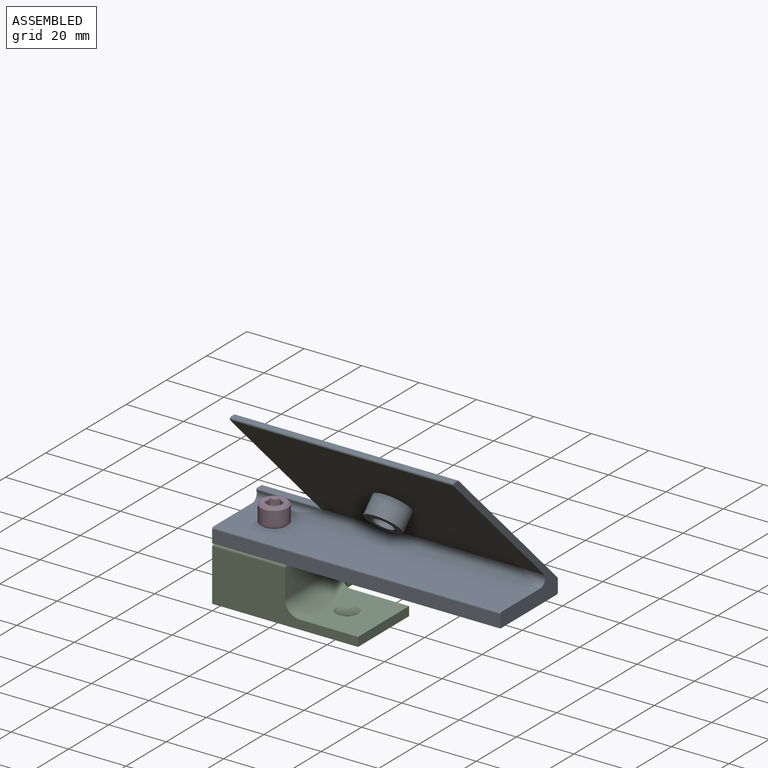
[diagram: assembled view]
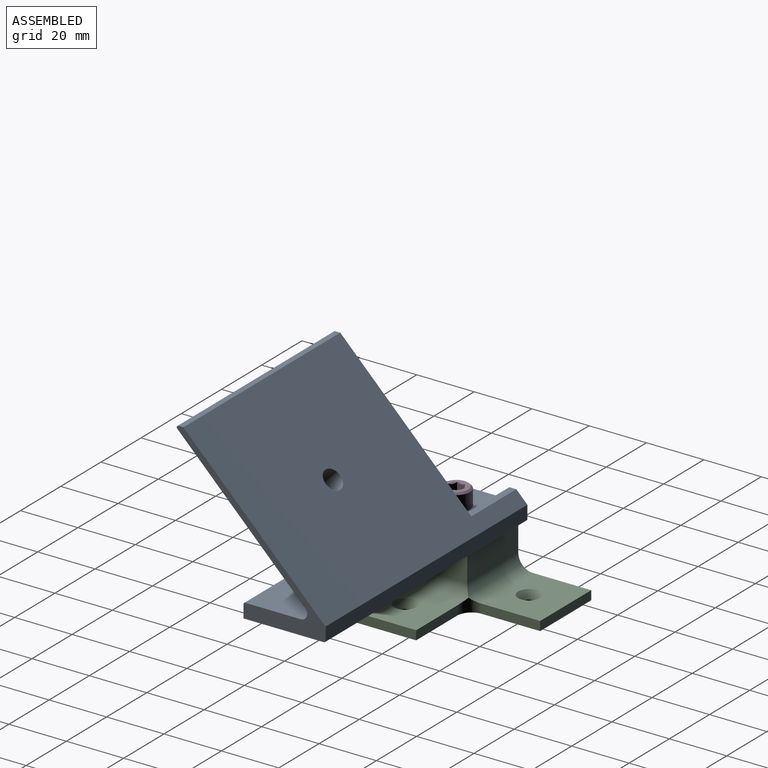
[diagram: assembled view, second angle]
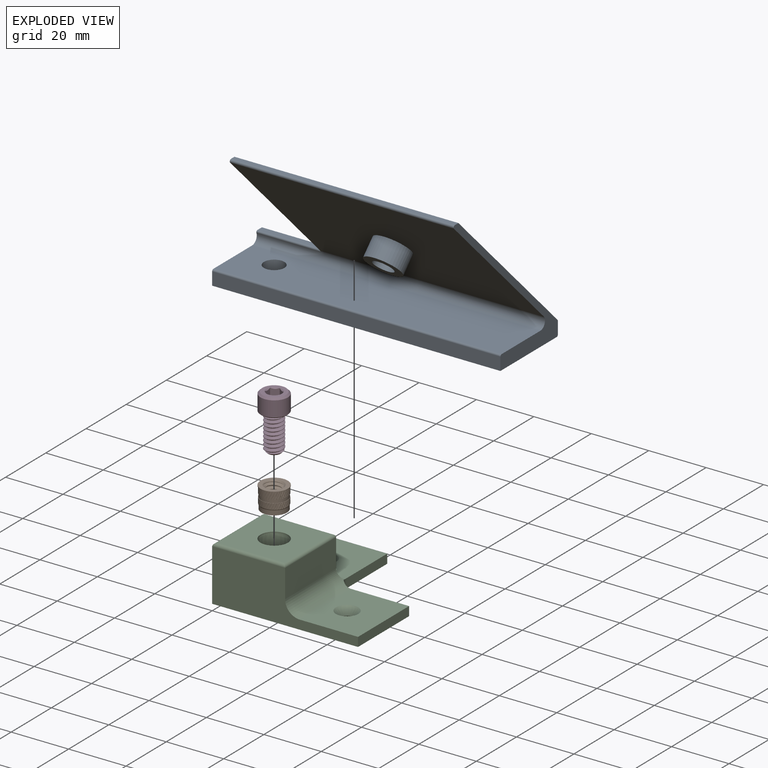
[diagram: exploded view]
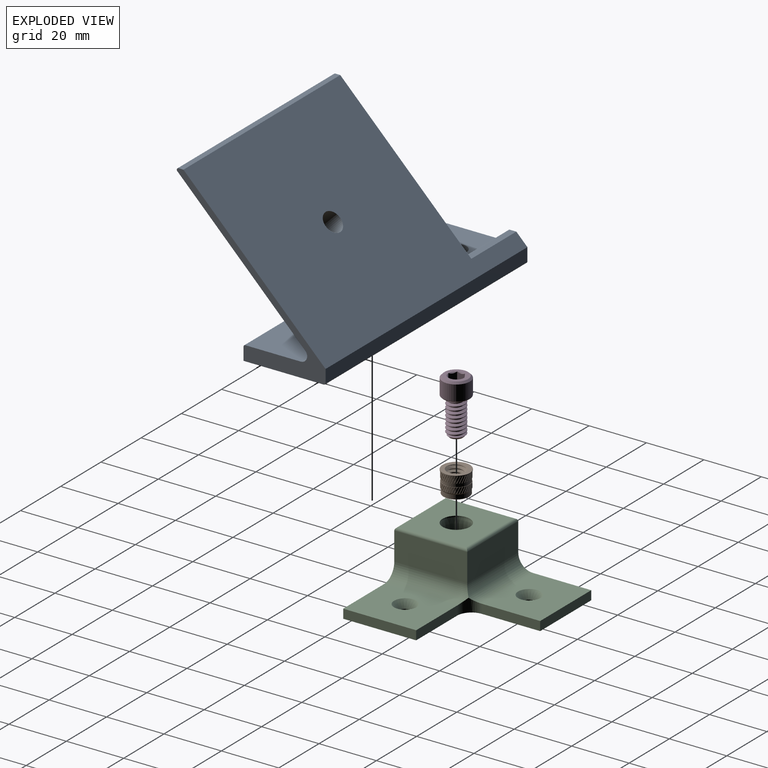
[diagram: exploded view, second angle]
ASSEMBLY  parts=4 mates=5
PART A: 20 faces, bbox 100.4x51.8x54.6 mm
  f0: plane 100.4x19.28mm, normal (0,0,1), area 1895.8mm2, adj f3,f5,f11,f15,f19
  f1: plane 47.97x46.33mm, normal (-1,0,0), area 144.6mm2, adj f7,f8,f9,f10,f11,f12,f13
  f2: plane 100.4x4.48mm, normal (0,1,0), area 449.8mm2, adj f3,f5,f7,f14
  f3: plane 28.58x8.94mm, normal (-1,0,0), area 163.5mm2, adj f0,f2,f4,f6,f7,f10,f11,f12
  f4: plane 100.4x4.48mm, normal (0,-1,0), area 449.8mm2, adj f3,f5,f6,f15
  f5: plane 54.58x51.82mm, normal (1,0,0), area 308.2mm2, adj f0,f2,f4,f6,f7,f8,f9,f11
  f6: plane 100.4x27.98mm, normal (0,0,-1), area 2768.7mm2, adj f3,f4,f5,f14,f19
  f7: plane 100.4x49.5mm, normal (0,0.71,0.71), area 5542.2mm2, adj f1,f2,f3,f5,f8,f10,f18
  f8: plane 78x1.73mm, normal (0,0,1), area 134.7mm2, adj f1,f5,f7,f13
  f9: plane 78x44.57mm, normal (0,-0.71,-0.71), area 4789.9mm2, adj f1,f5,f11,f13,f16
  f10: plane 22.4x2.26mm, normal (0,0,1), area 50.7mm2, adj f1,f3,f7,f12
  f11: cylinder r=2.29mm len=100.4mm, axis (1,0,0), area 520.8mm2, adj f0,f1,f3,f5,f9,f12
  f12: cylinder r=0.5mm len=22.4mm, axis (1,0,0), area 22mm2, adj f1,f3,f10,f11
  f13: cylinder r=0.6mm len=78mm, axis (1,0,0), area 110.3mm2, adj f1,f5,f8,f9
  f14: cylinder r=0.6mm len=100.4mm, axis (-1,0,0), area 94.6mm2, adj f2,f3,f5,f6
  f15: cylinder r=0.6mm len=100.4mm, axis (-1,0,0), area 94.6mm2, adj f0,f3,f4,f5
  f16: cylinder r=6.35mm len=13.83mm, axis (0,0.71,0.71), area 273.6mm2, adj f9,f17
  f17: plane 12.7x8.98mm, normal (0,-0.71,-0.71), area 86.7mm2, adj f16,f18
  f18: cylinder r=3.57mm len=11.48mm, axis (0,0.71,0.71), area 204.1mm2, adj f7,f17
  f19: cylinder r=3.57mm len=7.14mm, axis (0,0,1), area 113.9mm2, adj f0,f6
PART B: 233 faces, bbox 9.5x8.7x9.5 mm
  f0: cylinder r=4.61mm len=2.03mm, axis (0,1,0), area 1.3mm2, adj f37,f106,f151,f230
  f1: cylinder r=4.61mm len=2.03mm, axis (0,1,0), area 1.3mm2, adj f104,f107,f151,f230
  f2: cylinder r=4.61mm len=2.03mm, axis (0,1,0), area 1.3mm2, adj f102,f105,f151,f230
  f3: cylinder r=4.61mm len=2.03mm, axis (0,1,0), area 1.3mm2, adj f100,f103,f151,f230
  f4: cylinder r=4.61mm len=2.03mm, axis (0,1,0), area 1.3mm2, adj f98,f101,f151,f230
  f5: cylinder r=4.61mm len=2.03mm, axis (0,1,0), area 1.3mm2, adj f96,f99,f151,f230
  f6: cylinder r=4.61mm len=2.03mm, axis (0,1,0), area 1.3mm2, adj f94,f97,f151,f230
  f7: cylinder r=4.61mm len=2.03mm, axis (0,1,0), area 1.3mm2, adj f92,f95,f151,f230
  f8: cylinder r=4.61mm len=2.03mm, axis (0,1,0), area 1.3mm2, adj f90,f93,f151,f230
  f9: cylinder r=4.61mm len=2.03mm, axis (0,1,0), area 1.3mm2, adj f88,f91,f151,f230
  f10: cylinder r=4.61mm len=2.03mm, axis (0,1,0), area 1.3mm2, adj f86,f89,f151,f230
  f11: cylinder r=4.61mm len=2.03mm, axis (0,1,0), area 1.3mm2, adj f84,f87,f151,f230
  f12: cylinder r=4.61mm len=2.03mm, axis (0,1,0), area 1.3mm2, adj f82,f85,f151,f230
  f13: cylinder r=4.61mm len=2.03mm, axis (0,1,0), area 1.3mm2, adj f80,f83,f151,f230
  f14: cylinder r=4.61mm len=2.03mm, axis (0,1,0), area 1.3mm2, adj f78,f81,f151,f230
  f15: cylinder r=4.61mm len=2.03mm, axis (0,1,0), area 1.3mm2, adj f76,f79,f151,f230
  f16: cylinder r=4.61mm len=2.03mm, axis (0,1,0), area 1.3mm2, adj f74,f77,f151,f230
  f17: cylinder r=4.61mm len=2.03mm, axis (0,1,0), area 1.3mm2, adj f72,f75,f151,f230
  f18: cylinder r=4.61mm len=2.03mm, axis (0,1,0), area 1.3mm2, adj f70,f73,f151,f230
  f19: cylinder r=4.61mm len=2.03mm, axis (0,1,0), area 1.3mm2, adj f68,f71,f151,f230
  f20: cylinder r=4.61mm len=2.03mm, axis (0,1,0), area 1.3mm2, adj f66,f69,f151,f230
  f21: cylinder r=4.61mm len=2.03mm, axis (0,1,0), area 1.3mm2, adj f64,f67,f151,f230
  f22: cylinder r=4.61mm len=2.03mm, axis (0,1,0), area 1.3mm2, adj f62,f65,f151,f230
  f23: cylinder r=4.61mm len=2.03mm, axis (0,1,0), area 1.3mm2, adj f60,f63,f151,f230
  f24: cylinder r=4.61mm len=2.03mm, axis (0,1,0), area 1.3mm2, adj f58,f61,f151,f230
  f25: cylinder r=4.61mm len=2.03mm, axis (0,1,0), area 1.3mm2, adj f56,f59,f151,f230
  f26: cylinder r=4.61mm len=2.03mm, axis (0,1,0), area 1.3mm2, adj f54,f57,f151,f230
  f27: cylinder r=4.61mm len=2.03mm, axis (0,1,0), area 1.3mm2, adj f52,f55,f151,f230
  f28: cylinder r=4.61mm len=2.03mm, axis (0,1,0), area 1.3mm2, adj f50,f53,f151,f230
  f29: cylinder r=4.61mm len=2.03mm, axis (0,1,0), area 1.3mm2, adj f48,f51,f151,f230
  f30: cylinder r=4.61mm len=2.03mm, axis (0,1,0), area 1.3mm2, adj f46,f49,f151,f230
  f31: cylinder r=4.61mm len=2.03mm, axis (0,1,0), area 1.3mm2, adj f44,f47,f151,f230
  f32: cylinder r=4.61mm len=2.03mm, axis (0,1,0), area 1.3mm2, adj f42,f45,f151,f230
  f33: cylinder r=4.61mm len=2.03mm, axis (0,1,0), area 1.3mm2, adj f40,f43,f151,f230
  f34: cylinder r=4.61mm len=2.03mm, axis (0,1,0), area 1.3mm2, adj f38,f41,f151,f230
  f35: cylinder r=4.61mm len=2.03mm, axis (0,1,0), area 1.3mm2, adj f36,f39,f151,f230
  f36: bspline ~2.44x1.12mm, area 0.3mm2, adj f35,f37,f151,f230
  f37: bspline ~2.44x1.19mm, area 0.3mm2, adj f0,f36,f151,f230
  f38: bspline ~2.44x1.22mm, area 0.3mm2, adj f34,f39,f151,f230
  f39: bspline ~2.44x1.27mm, area 0.3mm2, adj f35,f38,f151,f230
  f40: bspline ~2.44x1.29mm, area 0.3mm2, adj f33,f41,f151,f230
  f41: bspline ~2.18x1.18mm, area 0.3mm2, adj f34,f40,f151,f230
  f42: bspline ~2.44x1.32mm, area 0.3mm2, adj f32,f43,f151,f230
  f43: bspline ~2.18x1.18mm, area 0.3mm2, adj f33,f42,f151,f230
  f44: bspline ~2.44x1.3mm, area 0.3mm2, adj f31,f45,f151,f230
  f45: bspline ~2.18x1.15mm, area 0.3mm2, adj f32,f44,f151,f230
  f46: bspline ~2.44x1.25mm, area 0.3mm2, adj f30,f47,f151,f230
  f47: bspline ~2.18x1.07mm, area 0.3mm2, adj f31,f46,f151,f230
  f48: bspline ~2.44x1.16mm, area 0.3mm2, adj f29,f49,f151,f230
  f49: bspline ~2.44x1.08mm, area 0.3mm2, adj f30,f48,f151,f230
  f50: bspline ~2.44x1.03mm, area 0.3mm2, adj f28,f51,f151,f230
  f51: bspline ~2.44x0.94mm, area 0.3mm2, adj f29,f50,f151,f230
  f52: bspline ~2.44x0.99mm, area 0.3mm2, adj f27,f53,f151,f230
  f53: bspline ~2.44x1.08mm, area 0.3mm2, adj f28,f52,f151,f230
  f54: bspline ~2.44x1.12mm, area 0.3mm2, adj f26,f55,f151,f230
  f55: bspline ~2.44x1.19mm, area 0.3mm2, adj f27,f54,f151,f230
  f56: bspline ~2.44x1.22mm, area 0.3mm2, adj f25,f57,f151,f230
  f57: bspline ~2.44x1.27mm, area 0.3mm2, adj f26,f56,f151,f230
  f58: bspline ~2.44x1.29mm, area 0.3mm2, adj f24,f59,f151,f230
  f59: bspline ~2.18x1.18mm, area 0.3mm2, adj f25,f58,f151,f230
  f60: bspline ~2.44x1.32mm, area 0.3mm2, adj f23,f61,f151,f230
  f61: bspline ~2.18x1.18mm, area 0.3mm2, adj f24,f60,f151,f230
  f62: bspline ~2.44x1.3mm, area 0.3mm2, adj f22,f63,f151,f230
  f63: bspline ~2.18x1.15mm, area 0.3mm2, adj f23,f62,f151,f230
  f64: bspline ~2.44x1.25mm, area 0.3mm2, adj f21,f65,f151,f230
  f65: bspline ~2.18x1.07mm, area 0.3mm2, adj f22,f64,f151,f230
  f66: bspline ~2.44x1.16mm, area 0.3mm2, adj f20,f67,f151,f230
  f67: bspline ~2.44x1.08mm, area 0.3mm2, adj f21,f66,f151,f230
  f68: bspline ~2.44x1.03mm, area 0.3mm2, adj f19,f69,f151,f230
  f69: bspline ~2.44x0.94mm, area 0.3mm2, adj f20,f68,f151,f230
  f70: bspline ~2.44x0.99mm, area 0.3mm2, adj f18,f71,f151,f230
  f71: bspline ~2.44x1.08mm, area 0.3mm2, adj f19,f70,f151,f230
  f72: bspline ~2.44x1.12mm, area 0.3mm2, adj f17,f73,f151,f230
  f73: bspline ~2.44x1.19mm, area 0.3mm2, adj f18,f72,f151,f230
  f74: bspline ~2.44x1.22mm, area 0.3mm2, adj f16,f75,f151,f230
  f75: bspline ~2.44x1.27mm, area 0.3mm2, adj f17,f74,f151,f230
  f76: bspline ~2.44x1.29mm, area 0.3mm2, adj f15,f77,f151,f230
  f77: bspline ~2.18x1.18mm, area 0.3mm2, adj f16,f76,f151,f230
  f78: bspline ~2.44x1.32mm, area 0.3mm2, adj f14,f79,f151,f230
  f79: bspline ~2.18x1.18mm, area 0.3mm2, adj f15,f78,f151,f230
  f80: bspline ~2.44x1.3mm, area 0.3mm2, adj f13,f81,f151,f230
  f81: bspline ~2.18x1.15mm, area 0.3mm2, adj f14,f80,f151,f230
  f82: bspline ~2.44x1.25mm, area 0.3mm2, adj f12,f83,f151,f230
  f83: bspline ~2.18x1.07mm, area 0.3mm2, adj f13,f82,f151,f230
  f84: bspline ~2.44x1.16mm, area 0.3mm2, adj f11,f85,f151,f230
  f85: bspline ~2.44x1.08mm, area 0.3mm2, adj f12,f84,f151,f230
  f86: bspline ~2.44x1.03mm, area 0.3mm2, adj f10,f87,f151,f230
  f87: bspline ~2.44x0.94mm, area 0.3mm2, adj f11,f86,f151,f230
  f88: bspline ~2.44x0.99mm, area 0.3mm2, adj f9,f89,f151,f230
  f89: bspline ~2.44x1.08mm, area 0.3mm2, adj f10,f88,f151,f230
  f90: bspline ~2.44x1.12mm, area 0.3mm2, adj f8,f91,f151,f230
  f91: bspline ~2.44x1.19mm, area 0.3mm2, adj f9,f90,f151,f230
  f92: bspline ~2.44x1.22mm, area 0.3mm2, adj f7,f93,f151,f230
  f93: bspline ~2.44x1.27mm, area 0.3mm2, adj f8,f92,f151,f230
  f94: bspline ~2.44x1.29mm, area 0.3mm2, adj f6,f95,f151,f230
  f95: bspline ~2.18x1.18mm, area 0.3mm2, adj f7,f94,f151,f230
  f96: bspline ~2.44x1.32mm, area 0.3mm2, adj f5,f97,f151,f230
  f97: bspline ~2.18x1.18mm, area 0.3mm2, adj f6,f96,f151,f230
  f98: bspline ~2.44x1.3mm, area 0.3mm2, adj f4,f99,f151,f230
  f99: bspline ~2.18x1.15mm, area 0.3mm2, adj f5,f98,f151,f230
  f100: bspline ~2.44x1.25mm, area 0.3mm2, adj f3,f101,f151,f230
  f101: bspline ~2.18x1.07mm, area 0.3mm2, adj f4,f100,f151,f230
  f102: bspline ~2.44x1.16mm, area 0.3mm2, adj f2,f103,f151,f230
  f103: bspline ~2.44x1.08mm, area 0.3mm2, adj f3,f102,f151,f230
  f104: bspline ~2.44x1.03mm, area 0.3mm2, adj f1,f105,f151,f230
  f105: bspline ~2.44x0.94mm, area 0.3mm2, adj f2,f104,f151,f230
  f106: bspline ~2.44x0.99mm, area 0.3mm2, adj f0,f107,f151,f230
  f107: bspline ~2.44x1.08mm, area 0.3mm2, adj f1,f106,f151,f230
  f108: cylinder r=4.61mm len=2.34mm, axis (0,1,0), area 1.5mm2, adj f149,f159,f228,f231
  f109: cylinder r=4.61mm len=2.34mm, axis (0,1,0), area 1.5mm2, adj f149,f226,f229,f231
  f110: cylinder r=4.61mm len=2.34mm, axis (0,1,0), area 1.5mm2, adj f149,f224,f227,f231
  f111: cylinder r=4.61mm len=2.34mm, axis (0,1,0), area 1.5mm2, adj f149,f222,f225,f231
  f112: cylinder r=4.61mm len=2.34mm, axis (0,1,0), area 1.5mm2, adj f149,f220,f223,f231
  f113: cylinder r=4.61mm len=2.34mm, axis (0,1,0), area 1.5mm2, adj f149,f218,f221,f231
  f114: cylinder r=4.61mm len=2.34mm, axis (0,1,0), area 1.5mm2, adj f149,f216,f219,f231
  f115: cylinder r=4.61mm len=2.34mm, axis (0,1,0), area 1.5mm2, adj f149,f214,f217,f231
  f116: cylinder r=4.61mm len=2.34mm, axis (0,1,0), area 1.5mm2, adj f149,f212,f215,f231
  f117: cylinder r=4.61mm len=2.34mm, axis (0,1,0), area 1.5mm2, adj f149,f210,f213,f231
  f118: cylinder r=4.61mm len=2.34mm, axis (0,1,0), area 1.5mm2, adj f149,f208,f211,f231
  f119: cylinder r=4.61mm len=2.34mm, axis (0,1,0), area 1.5mm2, adj f149,f206,f209,f231
  f120: cylinder r=4.61mm len=2.34mm, axis (0,1,0), area 1.5mm2, adj f149,f204,f207,f231
  f121: cylinder r=4.61mm len=2.34mm, axis (0,1,0), area 1.5mm2, adj f149,f202,f205,f231
  f122: cylinder r=4.61mm len=2.34mm, axis (0,1,0), area 1.5mm2, adj f149,f200,f203,f231
  f123: cylinder r=4.61mm len=2.34mm, axis (0,1,0), area 1.5mm2, adj f149,f198,f201,f231
  f124: cylinder r=4.61mm len=2.34mm, axis (0,1,0), area 1.5mm2, adj f149,f196,f199,f231
  f125: cylinder r=4.61mm len=2.34mm, axis (0,1,0), area 1.5mm2, adj f149,f194,f197,f231
  f126: cylinder r=4.61mm len=2.34mm, axis (0,1,0), area 1.5mm2, adj f149,f192,f195,f231
  f127: cylinder r=4.61mm len=2.34mm, axis (0,1,0), area 1.5mm2, adj f149,f190,f193,f231
  f128: cylinder r=4.61mm len=2.34mm, axis (0,1,0), area 1.5mm2, adj f149,f188,f191,f231
  f129: cylinder r=4.61mm len=2.34mm, axis (0,1,0), area 1.5mm2, adj f149,f186,f189,f231
  f130: cylinder r=4.61mm len=2.34mm, axis (0,1,0), area 1.5mm2, adj f149,f184,f187,f231
  f131: cylinder r=4.61mm len=2.34mm, axis (0,1,0), area 1.5mm2, adj f149,f182,f185,f231
  f132: cylinder r=4.61mm len=2.34mm, axis (0,1,0), area 1.5mm2, adj f149,f180,f183,f231
  f133: cylinder r=4.61mm len=2.34mm, axis (0,1,0), area 1.5mm2, adj f149,f178,f181,f231
  f134: cylinder r=4.61mm len=2.34mm, axis (0,1,0), area 1.5mm2, adj f149,f176,f179,f231
  f135: cylinder r=4.61mm len=2.34mm, axis (0,1,0), area 1.5mm2, adj f149,f174,f177,f231
  f136: cylinder r=4.61mm len=2.34mm, axis (0,1,0), area 1.5mm2, adj f149,f172,f175,f231
  f137: cylinder r=4.61mm len=2.34mm, axis (0,1,0), area 1.5mm2, adj f149,f170,f173,f231
  f138: cylinder r=4.61mm len=2.34mm, axis (0,1,0), area 1.5mm2, adj f149,f168,f171,f231
  f139: cylinder r=4.61mm len=2.34mm, axis (0,1,0), area 1.5mm2, adj f149,f166,f169,f231
  f140: cylinder r=4.61mm len=2.34mm, axis (0,1,0), area 1.5mm2, adj f149,f164,f167,f231
  f141: cylinder r=4.61mm len=2.34mm, axis (0,1,0), area 1.5mm2, adj f149,f162,f165,f231
  f142: cylinder r=4.61mm len=2.34mm, axis (0,1,0), area 1.5mm2, adj f149,f160,f163,f231
  f143: cylinder r=2.35mm len=5.72mm, axis (0,1,0), area 10.5mm2, adj f144,f145,f155,f157
  f144: cone r=2.35mm half-angle=45deg, axis (0,1,0), area 14.2mm2, adj f143,f150,f155,f156,f157
  f145: cone r=3.3mm half-angle=45deg, axis (0,-1,0), area 14.2mm2, adj f143,f154,f155,f156,f157
  f146: cylinder r=4.43mm len=8.86mm, axis (0,1,0), area 41.6mm2, adj f151,f153
  f147: cylinder r=4.61mm len=2.34mm, axis (0,1,0), area 1.5mm2, adj f149,f158,f161,f231
  f148: cylinder r=4.76mm len=9.53mm, axis (0,1,0), area 7.6mm2, adj f149,f150
  f149: plane 9.53x9.53mm, normal (0,-1,0), area 4.8mm2, adj f108,f109,f110,f111,f112,f113,f114,f115
  f150: plane 9.53x9.53mm, normal (0,1,0), area 37mm2, adj f144,f148
  f151: cone r=4.61mm half-angle=30deg, axis (0,1,0), area 9.5mm2, adj f0,f1,f2,f3,f4,f5,f6,f7
  f152: cone r=4.5mm half-angle=45deg, axis (0,1,0), area 2.5mm2, adj f153,f154
  f153: plane 8.99x8.99mm, normal (0,1,0), area 1.8mm2, adj f146,f152
  f154: plane 8.86x8.86mm, normal (0,-1,0), area 27.5mm2, adj f145,f152
  f155: bspline ~8.14x6.35mm, area 85.9mm2, adj f143,f144,f145,f156
  f156: cylinder r=3.17mm len=7.36mm, axis (0,1,0), area 18.4mm2, adj f144,f145,f155,f157
  f157: bspline ~8.14x6.35mm, area 84.8mm2, adj f143,f144,f145,f156
  f158: bspline ~2.59x1.37mm, area 0.3mm2, adj f147,f149,f159,f231
  f159: bspline ~2.57x1.37mm, area 0.3mm2, adj f108,f149,f158,f231
  f160: bspline ~2.59x1.39mm, area 0.3mm2, adj f142,f149,f161,f231
  f161: bspline ~2.57x1.37mm, area 0.3mm2, adj f147,f149,f160,f231
  f162: bspline ~2.59x1.38mm, area 0.3mm2, adj f141,f149,f163,f231
  f163: bspline ~2.33x1.21mm, area 0.3mm2, adj f142,f149,f162,f231
  f164: bspline ~2.59x1.32mm, area 0.3mm2, adj f140,f149,f165,f231
  f165: bspline ~2.33x1.13mm, area 0.3mm2, adj f141,f149,f164,f231
  f166: bspline ~2.59x1.22mm, area 0.3mm2, adj f139,f149,f167,f231
  f167: bspline ~2.33x1.02mm, area 0.3mm2, adj f140,f149,f166,f231
  f168: bspline ~2.59x1.08mm, area 0.3mm2, adj f138,f149,f169,f231
  f169: bspline ~2.33x0.91mm, area 0.3mm2, adj f139,f149,f168,f231
  f170: bspline ~2.59x1.05mm, area 0.3mm2, adj f137,f149,f171,f231
  f171: bspline ~2.57x1.13mm, area 0.3mm2, adj f138,f149,f170,f231
  f172: bspline ~2.59x1.19mm, area 0.3mm2, adj f136,f149,f173,f231
  f173: bspline ~2.33x1.15mm, area 0.3mm2, adj f137,f149,f172,f231
  f174: bspline ~2.59x1.3mm, area 0.3mm2, adj f135,f149,f175,f231
  f175: bspline ~2.57x1.33mm, area 0.3mm2, adj f136,f149,f174,f231
  f176: bspline ~2.59x1.37mm, area 0.3mm2, adj f134,f149,f177,f231
  f177: bspline ~2.57x1.37mm, area 0.3mm2, adj f135,f149,f176,f231
  f178: bspline ~2.59x1.39mm, area 0.3mm2, adj f133,f149,f179,f231
  f179: bspline ~2.57x1.37mm, area 0.3mm2, adj f134,f149,f178,f231
  f180: bspline ~2.59x1.38mm, area 0.3mm2, adj f132,f149,f181,f231
  f181: bspline ~2.33x1.21mm, area 0.3mm2, adj f133,f149,f180,f231
  f182: bspline ~2.59x1.32mm, area 0.3mm2, adj f131,f149,f183,f231
  f183: bspline ~2.33x1.13mm, area 0.3mm2, adj f132,f149,f182,f231
  f184: bspline ~2.59x1.22mm, area 0.3mm2, adj f130,f149,f185,f231
  f185: bspline ~2.33x1.02mm, area 0.3mm2, adj f131,f149,f184,f231
  f186: bspline ~2.59x1.08mm, area 0.3mm2, adj f129,f149,f187,f231
  f187: bspline ~2.33x0.91mm, area 0.3mm2, adj f130,f149,f186,f231
  f188: bspline ~2.59x1.05mm, area 0.3mm2, adj f128,f149,f189,f231
  f189: bspline ~2.57x1.13mm, area 0.3mm2, adj f129,f149,f188,f231
  f190: bspline ~2.59x1.19mm, area 0.3mm2, adj f127,f149,f191,f231
  f191: bspline ~2.33x1.15mm, area 0.3mm2, adj f128,f149,f190,f231
  f192: bspline ~2.59x1.3mm, area 0.3mm2, adj f126,f149,f193,f231
  f193: bspline ~2.57x1.33mm, area 0.3mm2, adj f127,f149,f192,f231
  f194: bspline ~2.59x1.37mm, area 0.3mm2, adj f125,f149,f195,f231
  f195: bspline ~2.57x1.37mm, area 0.3mm2, adj f126,f149,f194,f231
  f196: bspline ~2.59x1.39mm, area 0.3mm2, adj f124,f149,f197,f231
  f197: bspline ~2.57x1.37mm, area 0.3mm2, adj f125,f149,f196,f231
  f198: bspline ~2.59x1.38mm, area 0.3mm2, adj f123,f149,f199,f231
  f199: bspline ~2.33x1.21mm, area 0.3mm2, adj f124,f149,f198,f231
  f200: bspline ~2.59x1.32mm, area 0.3mm2, adj f122,f149,f201,f231
  f201: bspline ~2.33x1.13mm, area 0.3mm2, adj f123,f149,f200,f231
  f202: bspline ~2.59x1.22mm, area 0.3mm2, adj f121,f149,f203,f231
  f203: bspline ~2.33x1.02mm, area 0.3mm2, adj f122,f149,f202,f231
  f204: bspline ~2.59x1.08mm, area 0.3mm2, adj f120,f149,f205,f231
  f205: bspline ~2.33x0.91mm, area 0.3mm2, adj f121,f149,f204,f231
  f206: bspline ~2.59x1.05mm, area 0.3mm2, adj f119,f149,f207,f231
  f207: bspline ~2.57x1.13mm, area 0.3mm2, adj f120,f149,f206,f231
  f208: bspline ~2.59x1.19mm, area 0.3mm2, adj f118,f149,f209,f231
  f209: bspline ~2.33x1.15mm, area 0.3mm2, adj f119,f149,f208,f231
  f210: bspline ~2.59x1.3mm, area 0.3mm2, adj f117,f149,f211,f231
  f211: bspline ~2.57x1.33mm, area 0.3mm2, adj f118,f149,f210,f231
  f212: bspline ~2.59x1.37mm, area 0.3mm2, adj f116,f149,f213,f231
  f213: bspline ~2.57x1.37mm, area 0.3mm2, adj f117,f149,f212,f231
  f214: bspline ~2.59x1.39mm, area 0.3mm2, adj f115,f149,f215,f231
  f215: bspline ~2.57x1.37mm, area 0.3mm2, adj f116,f149,f214,f231
  f216: bspline ~2.59x1.38mm, area 0.3mm2, adj f114,f149,f217,f231
  f217: bspline ~2.33x1.21mm, area 0.3mm2, adj f115,f149,f216,f231
  f218: bspline ~2.59x1.32mm, area 0.3mm2, adj f113,f149,f219,f231
  f219: bspline ~2.33x1.13mm, area 0.3mm2, adj f114,f149,f218,f231
  f220: bspline ~2.59x1.22mm, area 0.3mm2, adj f112,f149,f221,f231
  f221: bspline ~2.33x1.02mm, area 0.3mm2, adj f113,f149,f220,f231
  f222: bspline ~2.59x1.08mm, area 0.3mm2, adj f111,f149,f223,f231
  f223: bspline ~2.33x0.91mm, area 0.3mm2, adj f112,f149,f222,f231
  f224: bspline ~2.59x1.05mm, area 0.3mm2, adj f110,f149,f225,f231
  f225: bspline ~2.57x1.13mm, area 0.3mm2, adj f111,f149,f224,f231
  f226: bspline ~2.59x1.19mm, area 0.3mm2, adj f109,f149,f227,f231
  f227: bspline ~2.33x1.15mm, area 0.3mm2, adj f110,f149,f226,f231
  f228: bspline ~2.59x1.3mm, area 0.3mm2, adj f108,f149,f229,f231
  f229: bspline ~2.57x1.33mm, area 0.3mm2, adj f109,f149,f228,f231
  f230: plane 9.22x9.22mm, normal (0,1,0), area 3mm2, adj f0,f1,f2,f3,f4,f5,f6,f7
  f231: plane 9.22x9.22mm, normal (0,-1,0), area 3mm2, adj f108,f109,f110,f111,f112,f113,f114,f115
  f232: cylinder r=4.5mm len=8.99mm, axis (0,1,0), area 32.2mm2, adj f230,f231
PART C: 26 faces, bbox 50.8x50.8x19.1 mm
  f0: plane 25.4x9.8mm, normal (1,0,0), area 248.8mm2, adj f3,f10,f16,f18
  f1: plane 25.4x20.32mm, normal (0,0,1), area 468.4mm2, adj f3,f4,f5,f18,f23
  f2: plane 50.8x18.05mm, normal (-1,0,0), area 544.7mm2, adj f3,f7,f8,f9,f10,f12,f13
  f3: plane 50.8x18.05mm, normal (0,-1,0), area 544.7mm2, adj f0,f1,f2,f4,f9,f14,f18
  f4: plane 25.4x3.18mm, normal (1,0,0), area 80.6mm2, adj f1,f3,f5,f9
  f5: plane 20.32x3.18mm, normal (0,1,0), area 64.5mm2, adj f1,f4,f9,f17
  f6: plane 20.32x3.18mm, normal (1,0,0), area 64.5mm2, adj f7,f8,f9,f17
  f7: plane 25.4x3.18mm, normal (0,1,0), area 80.6mm2, adj f2,f6,f8,f9
  f8: plane 25.4x20.32mm, normal (0,0,1), area 468.4mm2, adj f2,f6,f7,f12,f25
  f9: plane 50.8x50.8mm, normal (0,0,-1), area 1920mm2, adj f2,f3,f4,f5,f6,f7,f17,f22
  f10: plane 25.4x9.8mm, normal (0,1,0), area 248.8mm2, adj f0,f2,f12,f15
  f11: plane 23.4x23.4mm, normal (0,0,1), area 475.9mm2, adj f13,f14,f15,f16,f19
  f12: cylinder r=5.08mm len=26.89mm, axis (1,0,0), area 206.7mm2, adj f2,f8,f10,f17,f18
  f13: cylinder r=1mm len=25.4mm, axis (0,1,0), area 38.8mm2, adj f2,f11,f14,f15
  f14: cylinder r=1mm len=25.4mm, axis (-1,0,0), area 38.8mm2, adj f3,f11,f13,f16
  f15: cylinder r=1mm len=25.4mm, axis (1,0,0), area 38.8mm2, adj f10,f11,f13,f16
  f16: cylinder r=1mm len=25.4mm, axis (0,1,0), area 38.8mm2, adj f0,f11,f14,f15
  f17: cylinder r=5.08mm len=5.08mm, axis (0,0,1), area 29.4mm2, adj f5,f6,f9,f12,f18
  f18: cylinder r=5.08mm len=26.89mm, axis (0,1,0), area 206.7mm2, adj f0,f1,f3,f12,f17
  f19: cylinder r=4.78mm len=9.55mm, axis (0,0,1), area 12mm2, adj f11,f20
  f20: cone r=4.78mm half-angle=5deg, axis (0,0,1), area 213.5mm2, adj f19,f21
  f21: plane 8.22x8.22mm, normal (0,0,1), area 53mm2, adj f20
  f22: cylinder r=1.83mm len=3.66mm, axis (0,0,1), area 9.1mm2, adj f9,f23
  f23: cone r=1.83mm half-angle=41deg, axis (0,0,1), area 56.8mm2, adj f1,f22
  f24: cylinder r=1.83mm len=3.66mm, axis (0,0,1), area 9.1mm2, adj f9,f25
  f25: cone r=1.83mm half-angle=41deg, axis (0,0,1), area 56.8mm2, adj f8,f24
PART D: 24 faces, bbox 10.6x10.6x20.6 mm
  f0: cylinder r=3.17mm len=11.75mm, axis (0,0,1), area 43mm2, adj f2,f4,f5,f6
  f1: plane 4.45x4.45mm, normal (0,0,1), area 15.5mm2, adj f2
  f2: cone r=2.22mm half-angle=45deg, axis (0,0,-1), area 12.3mm2, adj f0,f1,f3,f4,f5
  f3: cylinder r=2.35mm len=12.57mm, axis (0,0,-1), area 27.3mm2, adj f2,f4,f5,f6
  f4: bspline ~13.39x7.33mm, area 158.3mm2, adj f0,f2,f3,f6
  f5: bspline ~13.81x7.33mm, area 157.5mm2, adj f0,f2,f3,f6
  f6: plane 9.39x9.39mm, normal (0,0,1), area 37.8mm2, adj f0,f3,f4,f5,f23
  f7: cylinder r=4.76mm len=9.53mm, axis (0,0,1), area 161.5mm2, adj f22,f23
  f8: plane 8.26x8.26mm, normal (0,0,-1), area 29.8mm2, adj f9,f10,f11,f12,f13,f14,f22
  f9: cone r=2.75mm half-angle=45deg, axis (0,0,-1), area 0mm2, adj f8,f16
  f10: cone r=2.75mm half-angle=45deg, axis (0,0,-1), area 0mm2, adj f8,f17
  f11: cone r=2.75mm half-angle=45deg, axis (0,0,-1), area 0mm2, adj f8,f18
  f12: cone r=2.75mm half-angle=45deg, axis (0,0,-1), area 0mm2, adj f8,f19
  f13: cone r=2.75mm half-angle=45deg, axis (0,0,-1), area 0mm2, adj f8,f20
  f14: cone r=2.75mm half-angle=45deg, axis (0,0,-1), area 0mm2, adj f8,f21
  f15: plane 5.5x4.76mm, normal (0,0,-1), area 19.6mm2, adj f16,f17,f18,f19,f20,f21
  f16: plane 4.61x3.42mm, normal (-0.5,-0.87,0), area 9.2mm2, adj f9,f15,f17,f21
  f17: plane 4.62x3.8mm, normal (-1,0,0), area 9.2mm2, adj f10,f15,f16,f18
  f18: plane 4.61x3.42mm, normal (-0.5,0.87,0), area 9.2mm2, adj f11,f15,f17,f19
  f19: plane 4.61x3.42mm, normal (0.5,0.87,0), area 9.2mm2, adj f12,f15,f18,f20
  f20: plane 4.62x3.8mm, normal (1,0,0), area 9.2mm2, adj f13,f15,f19,f21
  f21: plane 4.61x3.42mm, normal (0.5,-0.87,0), area 9.2mm2, adj f14,f15,f16,f20
  f22: cone r=4.13mm half-angle=45deg, axis (0,0,1), area 25.1mm2, adj f7,f8
  f23: cone r=4.76mm half-angle=45deg, axis (0,0,-1), area 13mm2, adj f6,f7
PLACE A at identity
PLACE B rot(axis=(0.58,-0.58,-0.58),120deg) t=(12.7,12.7,18.65)mm
PLACE C at identity
PLACE D rot(axis=(1,0,0),180deg) t=(12.7,12.7,11.59)mm
MATE cylindrical D.f0 <-> B.f0  axis (0,0,1) through (12.7,12.7,30.64)mm
MATE cylindrical B.f0 <-> C.f19  axis (0,0,1) through (12.7,12.7,18.65)mm
MATE planar A.f6 <-> C.f19  axis (0,0,-1) through (50.74,14.01,19.05)mm
MATE cylindrical A.f19 <-> C.f19  axis (0,0,1) through (12.7,12.7,24.13)mm
MATE planar B.f0 <-> C.f19  axis (0,0,-1) through (12.7,12.7,11.03)mm
